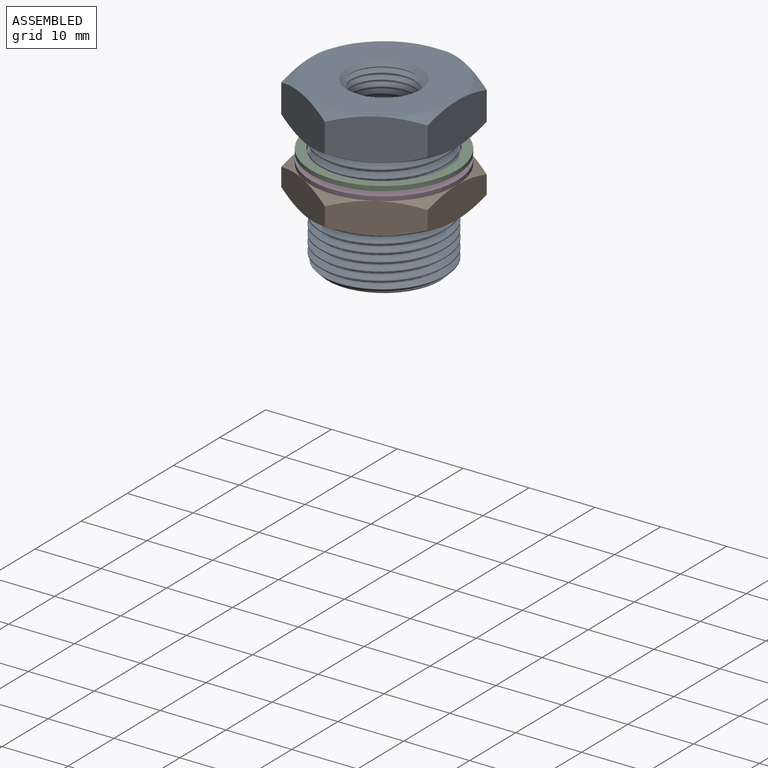
[diagram: assembled view]
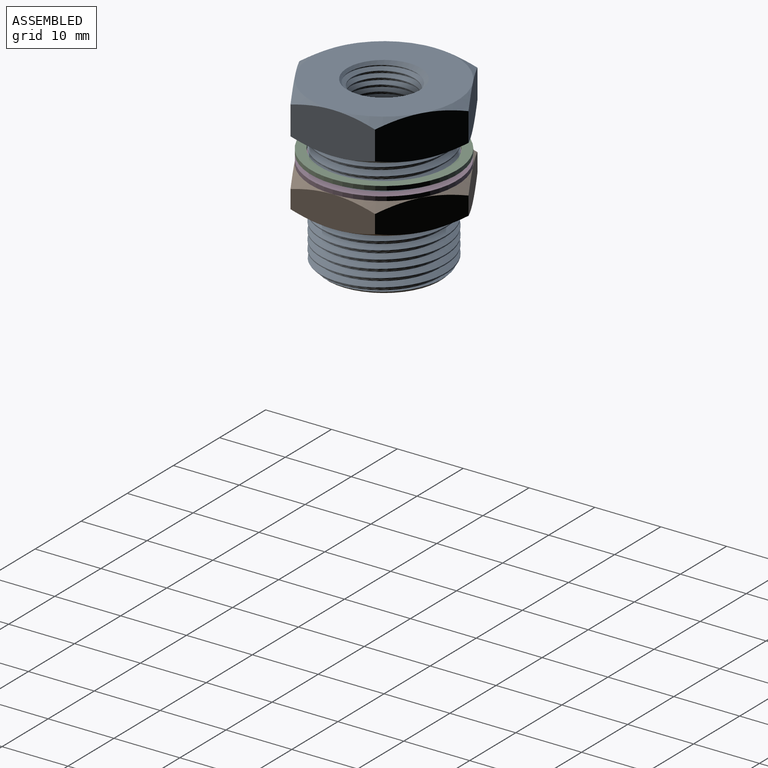
[diagram: assembled view, second angle]
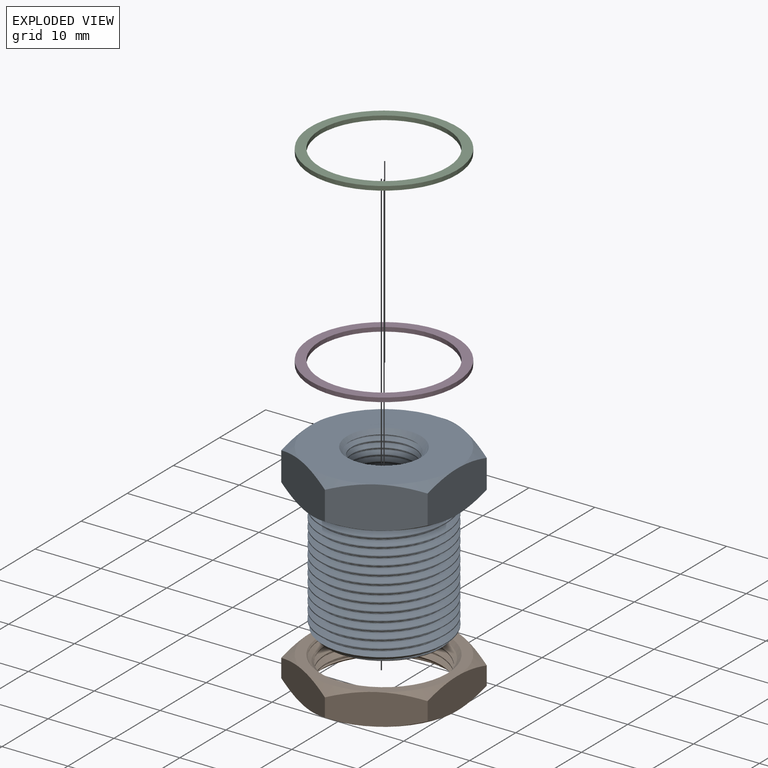
[diagram: exploded view]
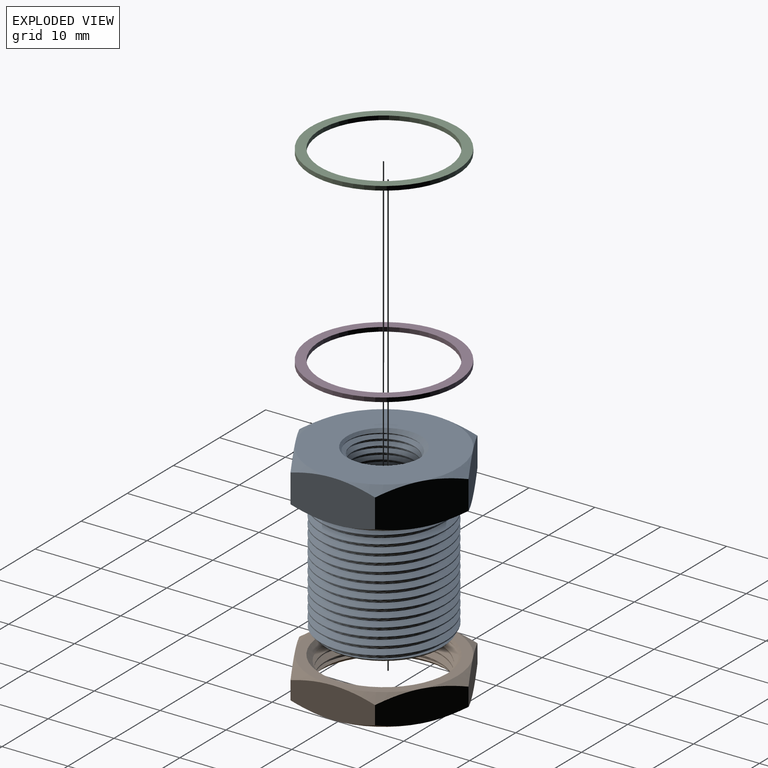
[diagram: exploded view, second angle]
ASSEMBLY  parts=4 mates=3
PART A: 41 faces, bbox 26.7x26.7x27.1 mm
  f0: plane 17.13x17.13mm, normal (0,0,-1), area 132.3mm2, adj f7,f33
  f1: plane 22.23x22.23mm, normal (0,0,1), area 289.9mm2, adj f14,f15,f16,f17,f18,f19,f26
  f2: plane 22.74x22.74mm, normal (0,0,-1), area 126.8mm2, adj f3,f4,f5,f6,f8,f9,f10,f11
  f3: cylinder r=9.53mm len=19.05mm, axis (0,0,1), area 136mm2, adj f2,f4,f6,f7
  f4: bspline ~20x19.05mm, area 795.6mm2, adj f2,f3,f5,f7
  f5: bspline ~19.37x17.4mm, area 129.7mm2, adj f2,f4,f6,f7
  f6: bspline ~19.61x19.33mm, area 797.2mm2, adj f2,f3,f5,f7
  f7: cone r=8.56mm half-angle=45deg, axis (0,0,1), area 43.6mm2, adj f0,f3,f4,f5,f6
  f8: cone r=11.11mm half-angle=60deg, axis (0,0,1), area 12.1mm2, adj f2,f20,f21
  f9: cone r=11.11mm half-angle=60deg, axis (0,0,1), area 12.1mm2, adj f2,f21,f22
  f10: cone r=11.11mm half-angle=60deg, axis (0,0,1), area 12.1mm2, adj f2,f22,f23
  f11: cone r=11.11mm half-angle=60deg, axis (0,0,1), area 12.1mm2, adj f2,f23,f24
  f12: cone r=11.11mm half-angle=60deg, axis (0,0,1), area 12.1mm2, adj f2,f24,f25
  f13: cone r=11.11mm half-angle=60deg, axis (0,0,1), area 12.1mm2, adj f2,f20,f25
  f14: cone r=11.11mm half-angle=60deg, axis (0,0,-1), area 12.1mm2, adj f1,f24,f25
  f15: cone r=11.11mm half-angle=60deg, axis (0,0,-1), area 12.1mm2, adj f1,f23,f24
  f16: cone r=11.11mm half-angle=60deg, axis (0,0,-1), area 12.1mm2, adj f1,f22,f23
  f17: cone r=11.11mm half-angle=60deg, axis (0,0,-1), area 12.1mm2, adj f1,f21,f22
  f18: cone r=11.11mm half-angle=60deg, axis (0,0,-1), area 12.1mm2, adj f1,f20,f25
  f19: cone r=11.11mm half-angle=60deg, axis (0,0,-1), area 12.1mm2, adj f1,f20,f21
  f20: plane 13.9x7.41mm, normal (-1,0,0), area 72.7mm2, adj f8,f13,f18,f19,f21,f25
  f21: plane 12.18x7.48mm, normal (-0.5,-0.87,0), area 72.7mm2, adj f8,f9,f17,f19,f20,f22
  f22: plane 12.18x7.48mm, normal (0.5,-0.87,0), area 72.7mm2, adj f9,f10,f16,f17,f21,f23
  f23: plane 13.9x7.41mm, normal (1,0,0), area 72.7mm2, adj f10,f11,f15,f16,f22,f24
  f24: plane 12.18x7.48mm, normal (0.5,0.87,0), area 72.7mm2, adj f11,f12,f14,f15,f23,f25
  f25: plane 12.18x7.48mm, normal (-0.5,0.87,0), area 72.7mm2, adj f12,f13,f14,f18,f20,f24
  f26: cone r=5.59mm half-angle=45deg, axis (0,0,1), area 24.7mm2, adj f1,f27,f30,f31,f32
  f27: cone r=5.59mm half-angle=45deg, axis (0,0,1), area 0.9mm2, adj f26,f29,f30,f31
  f28: plane 10.08x10.06mm, normal (0,0,1), area 12.3mm2, adj f29,f30,f31,f32,f40
  f29: bspline ~9.53x9.49mm, area 21.3mm2, adj f27,f28,f30,f31
  f30: bspline ~10.82x10.81mm, area 137.6mm2, adj f26,f27,f28,f29,f32
  f31: bspline ~10.97x10.93mm, area 143.4mm2, adj f26,f27,f28,f29,f32
  f32: cone r=5.14mm half-angle=1.8deg, axis (0,0,1), area 31.4mm2, adj f26,f28,f30,f31
  f33: cone r=5.59mm half-angle=45deg, axis (0,0,-1), area 24.7mm2, adj f0,f34,f37,f38,f39
  f34: cone r=5.59mm half-angle=45deg, axis (0,0,-1), area 0.9mm2, adj f33,f36,f37,f38
  f35: plane 10.08x10.06mm, normal (0,0,-1), area 12.3mm2, adj f36,f37,f38,f39,f40
  f36: bspline ~9.53x9.49mm, area 21.3mm2, adj f34,f35,f37,f38
  f37: bspline ~10.82x10.81mm, area 137.6mm2, adj f33,f34,f35,f36,f39
  f38: bspline ~10.97x10.93mm, area 143.4mm2, adj f33,f34,f35,f36,f39
  f39: cone r=5.14mm half-angle=1.8deg, axis (0,0,-1), area 31.4mm2, adj f33,f35,f37,f38
  f40: cylinder r=4.43mm len=11.99mm, axis (0,0,1), area 333.9mm2, adj f28,f35
PART B: 28 faces, bbox 26.7x26.7x6.8 mm
  f0: cylinder r=9.53mm len=19.05mm, axis (0,0,-1), area 33.6mm2, adj f21,f23,f24,f26
  f1: plane 12.18x7.48mm, normal (-0.5,0.87,0), area 52.4mm2, adj f2,f6,f13,f14,f19,f20
  f2: plane 13.9x5.83mm, normal (-1,0,0), area 52.4mm2, adj f1,f3,f9,f14,f15,f20
  f3: plane 12.18x7.48mm, normal (-0.5,-0.87,0), area 52.4mm2, adj f2,f4,f9,f10,f15,f16
  f4: plane 12.18x7.48mm, normal (0.5,-0.87,0), area 52.4mm2, adj f3,f5,f10,f11,f16,f17
  f5: plane 13.9x5.83mm, normal (1,0,0), area 52.4mm2, adj f4,f6,f11,f12,f17,f18
  f6: plane 12.18x7.48mm, normal (0.5,0.87,0), area 52.4mm2, adj f1,f5,f12,f13,f18,f19
  f7: plane 22.23x22.23mm, normal (0,0,1), area 94.6mm2, adj f15,f16,f17,f18,f19,f20,f26
  f8: plane 22.23x22.23mm, normal (0,0,-1), area 94.6mm2, adj f9,f10,f11,f12,f13,f14,f24
  f9: cone r=11.11mm half-angle=60deg, axis (0,0,1), area 12.1mm2, adj f2,f3,f8
  f10: cone r=11.11mm half-angle=60deg, axis (0,0,1), area 12.1mm2, adj f3,f4,f8
  f11: cone r=11.11mm half-angle=60deg, axis (0,0,1), area 12.1mm2, adj f4,f5,f8
  f12: cone r=11.11mm half-angle=60deg, axis (0,0,1), area 12.1mm2, adj f5,f6,f8
  f13: cone r=11.11mm half-angle=60deg, axis (0,0,1), area 12.1mm2, adj f1,f6,f8
  f14: cone r=11.11mm half-angle=60deg, axis (0,0,1), area 12.1mm2, adj f1,f2,f8
  f15: cone r=11.11mm half-angle=60deg, axis (0,0,-1), area 12.1mm2, adj f2,f3,f7
  f16: cone r=11.11mm half-angle=60deg, axis (0,0,-1), area 12.1mm2, adj f3,f4,f7
  f17: cone r=11.11mm half-angle=60deg, axis (0,0,-1), area 12.1mm2, adj f4,f5,f7
  f18: cone r=11.11mm half-angle=60deg, axis (0,0,-1), area 12.1mm2, adj f5,f6,f7
  f19: cone r=11.11mm half-angle=60deg, axis (0,0,-1), area 12.1mm2, adj f1,f6,f7
  f20: cone r=11.11mm half-angle=60deg, axis (0,0,-1), area 12.1mm2, adj f1,f2,f7
  f21: bspline ~19.05x19.05mm, area 158mm2, adj f0,f22,f24,f25,f26,f27
  f22: bspline ~17.4x17.4mm, area 19.4mm2, adj f21,f23,f24,f25,f27
  f23: bspline ~19.05x19.05mm, area 152.6mm2, adj f0,f22,f24,f27
  f24: cone r=9.66mm half-angle=45deg, axis (0,0,-1), area 45.5mm2, adj f0,f8,f21,f22,f23,f25
  f25: cone r=9.66mm half-angle=45deg, axis (0,0,-1), area 0mm2, adj f21,f22,f24
  f26: cone r=9.66mm half-angle=45deg, axis (0,0,1), area 37.1mm2, adj f0,f7,f21,f27
  f27: cone r=9.66mm half-angle=45deg, axis (0,0,1), area 8.4mm2, adj f21,f22,f23,f26
PART C: 4 faces, bbox 22.2x22.2x0.6 mm
  f0: plane 22.23x22.23mm, normal (0,0,1), area 94.6mm2, adj f1,f3
  f1: cylinder r=11.11mm len=22.23mm, axis (0,0,1), area 44.3mm2, adj f0,f2
  f2: plane 22.23x22.23mm, normal (0,0,-1), area 94.6mm2, adj f1,f3
  f3: cylinder r=9.66mm len=19.33mm, axis (0,0,1), area 38.6mm2, adj f0,f2
PART D: 4 faces, bbox 22.2x22.2x0.6 mm
  f0: plane 22.23x22.23mm, normal (0,0,1), area 94.6mm2, adj f1,f3
  f1: cylinder r=11.11mm len=22.23mm, axis (0,0,1), area 44.3mm2, adj f0,f2
  f2: plane 22.23x22.23mm, normal (0,0,-1), area 94.6mm2, adj f1,f3
  f3: cylinder r=9.66mm len=19.33mm, axis (0,0,1), area 38.6mm2, adj f0,f2
PLACE A at identity fixed
PLACE B rot(axis=(1,0,0),180deg) t=(0,0,-6.51)mm
PLACE C rot(axis=(1,0,0),180deg) t=(0,0,0.95)mm
PLACE D rot(axis=(1,0,0),180deg) t=(0,0,0.79)mm
MATE fastened A.f3 <-> C.f1  axis (0,0,-1) through (0,0,6.35)mm
MATE fastened D.f1 <-> C.f1  axis (0,0,1) through (0,0,1.75)mm
MATE fastened D.f1 <-> B.f0  axis (0,0,-1) through (0,0,1.11)mm
